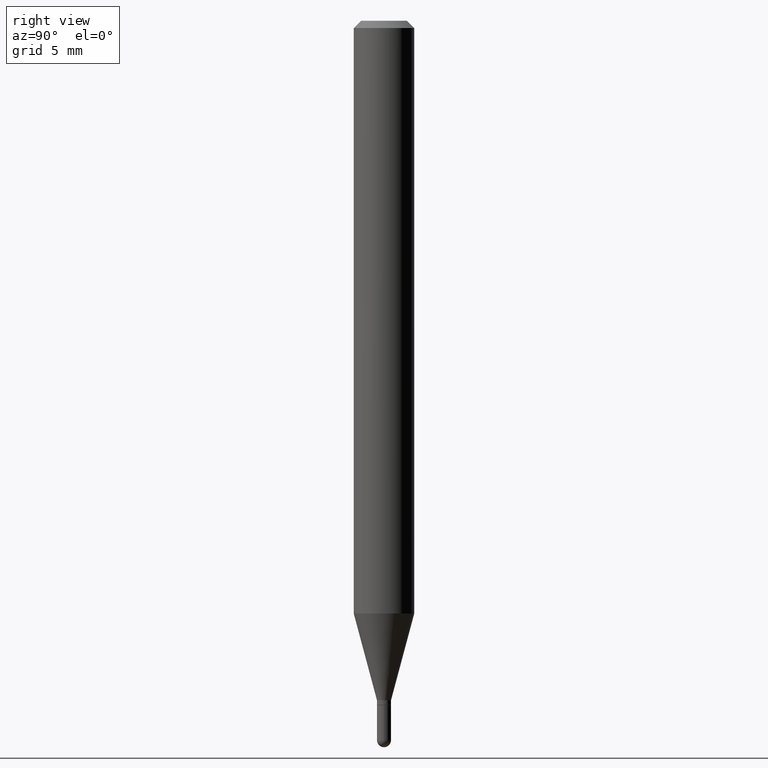
[diagram: clean part render]
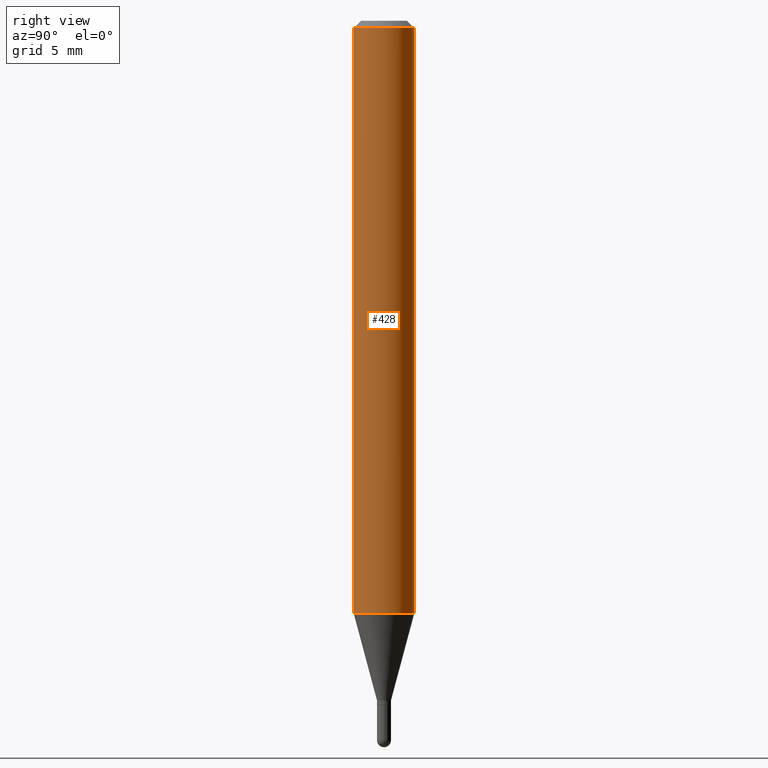
[diagram: same view with one face highlighted and labeled with its STEP entity id]
A machine part, right view. The second image highlights one B-rep face of the part: STEP entity #428.
In plain terms, the highlighted cylindrical surface (edge-blend (fillet) strip) has radius 1.5875 mm, axis along (-0, 0, 1).
Its self-contained STEP definition (entity closure, byte-faithful):
#3 = LINE ( 'NONE', #252, #338 ) ;
#35 = EDGE_CURVE ( 'NONE', #335, #159, #505, .T. ) ;
#45 = CARTESIAN_POINT ( 'NONE',  ( 4.440892098500922971E-16, 0.06249999999999571176, -1.223861561236694762 ) ) ;
#52 = EDGE_CURVE ( 'NONE', #245, #220, #109, .T. ) ;
#64 = ORIENTED_EDGE ( 'NONE', *, *, #52, .T. ) ;
#86 = FACE_OUTER_BOUND ( 'NONE', #114, .T. ) ;
#109 = CIRCLE ( 'NONE', #498, 0.06250000000000000000 ) ;
#114 = EDGE_LOOP ( 'NONE', ( #64, #490, #419, #321 ) ) ;
#116 = DIRECTION ( 'NONE',  ( -2.445461630549588864E-29, 3.491491614761661422E-15, 1.000000000000000000 ) ) ;
#129 = DIRECTION ( 'NONE',  ( -2.445461630549588864E-29, 3.491491614761661816E-15, 1.000000000000000000 ) ) ;
#139 = CYLINDRICAL_SURFACE ( 'NONE', #473, 0.06250000000000000000 ) ;
#159 = VERTEX_POINT ( 'NONE', #341 ) ;
#160 = DIRECTION ( 'NONE',  ( -2.445461630549588864E-29, 3.491491614761661816E-15, 1.000000000000000000 ) ) ;
#170 = CARTESIAN_POINT ( 'NONE',  ( 0.000000000000000000, 0.000000000000000000, 0.000000000000000000 ) ) ;
#192 = DIRECTION ( 'NONE',  ( -6.982962677686265922E-15, -1.000000000000000000, 3.483106191921935554E-15 ) ) ;
#196 = CARTESIAN_POINT ( 'NONE',  ( -4.364351673553912750E-16, -0.06250000000000005551, -0.01499999999999979128 ) ) ;
#201 = CARTESIAN_POINT ( 'NONE',  ( -4.364351673553617913E-16, -0.06250000000000427436, -1.223861561236694095 ) ) ;
#206 = CARTESIAN_POINT ( 'NONE',  ( 2.992906489108852516E-29, -4.273102378687034425E-15, -1.223861561236694540 ) ) ;
#220 = VERTEX_POINT ( 'NONE', #45 ) ;
#245 = VERTEX_POINT ( 'NONE', #201 ) ;
#252 = CARTESIAN_POINT ( 'NONE',  ( 4.440892098500625669E-16, 0.06250000000000000000, -2.182182259226038389E-16 ) ) ;
#321 = ORIENTED_EDGE ( 'NONE', *, *, #354, .F. ) ;
#335 = VERTEX_POINT ( 'NONE', #196 ) ;
#338 = VECTOR ( 'NONE', #129, 39.37007874015748143 ) ;
#341 = CARTESIAN_POINT ( 'NONE',  ( 4.440892098500927901E-16, 0.06249999999999995837, -0.01500000000000022669 ) ) ;
#354 = EDGE_CURVE ( 'NONE', #245, #335, #510, .T. ) ;
#358 = CARTESIAN_POINT ( 'NONE',  ( -4.364351673553916201E-16, -0.06250000000000000000, 2.182182259226038389E-16 ) ) ;
#368 = VECTOR ( 'NONE', #160, 39.37007874015748143 ) ;
#370 = DIRECTION ( 'NONE',  ( -6.982962677686265922E-15, -1.000000000000000000, 4.370956789862821150E-15 ) ) ;
#419 = ORIENTED_EDGE ( 'NONE', *, *, #35, .F. ) ;
#428 = ADVANCED_FACE ( 'NONE', ( #86 ), #139, .T. ) ;
#442 = DIRECTION ( 'NONE',  ( -2.445461630549588864E-29, 3.491491614761661422E-15, 1.000000000000000000 ) ) ;
#444 = DIRECTION ( 'NONE',  ( -6.982962677686265922E-15, -1.000000000000000000, 3.491491614761661422E-15 ) ) ;
#448 = DIRECTION ( 'NONE',  ( -2.445461630549588864E-29, 3.491491614761661422E-15, 1.000000000000000000 ) ) ;
#466 = CARTESIAN_POINT ( 'NONE',  ( 3.668192445824385714E-31, -5.237237422142495831E-17, -0.01500000000000000812 ) ) ;
#472 = AXIS2_PLACEMENT_3D ( 'NONE', #466, #116, #192 ) ;
#473 = AXIS2_PLACEMENT_3D ( 'NONE', #170, #442, #444 ) ;
#490 = ORIENTED_EDGE ( 'NONE', *, *, #511, .T. ) ;
#498 = AXIS2_PLACEMENT_3D ( 'NONE', #206, #448, #370 ) ;
#505 = CIRCLE ( 'NONE', #472, 0.06250000000000000000 ) ;
#510 = LINE ( 'NONE', #358, #368 ) ;
#511 = EDGE_CURVE ( 'NONE', #220, #159, #3, .T. ) ;